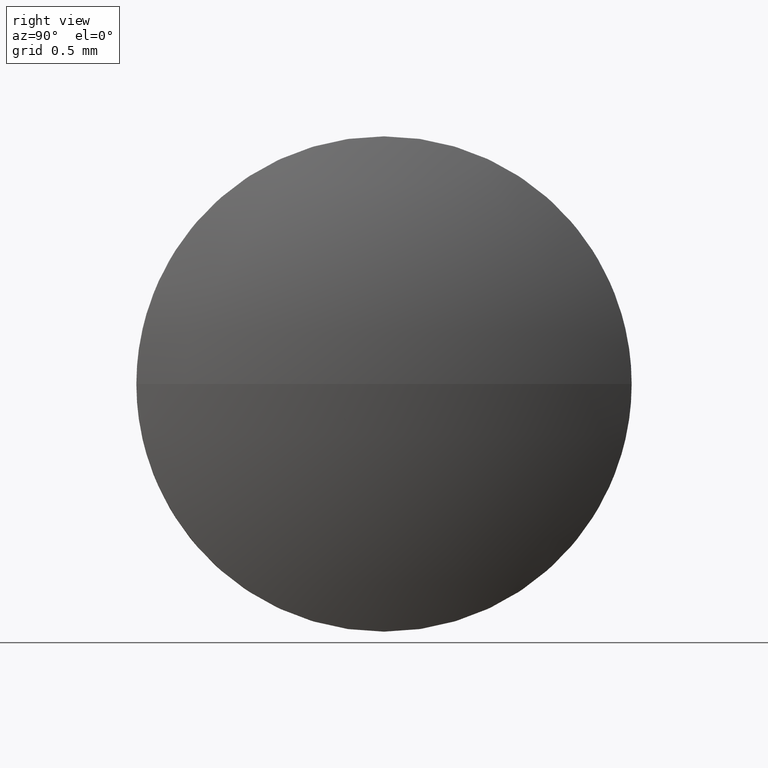
[diagram: clean part render]
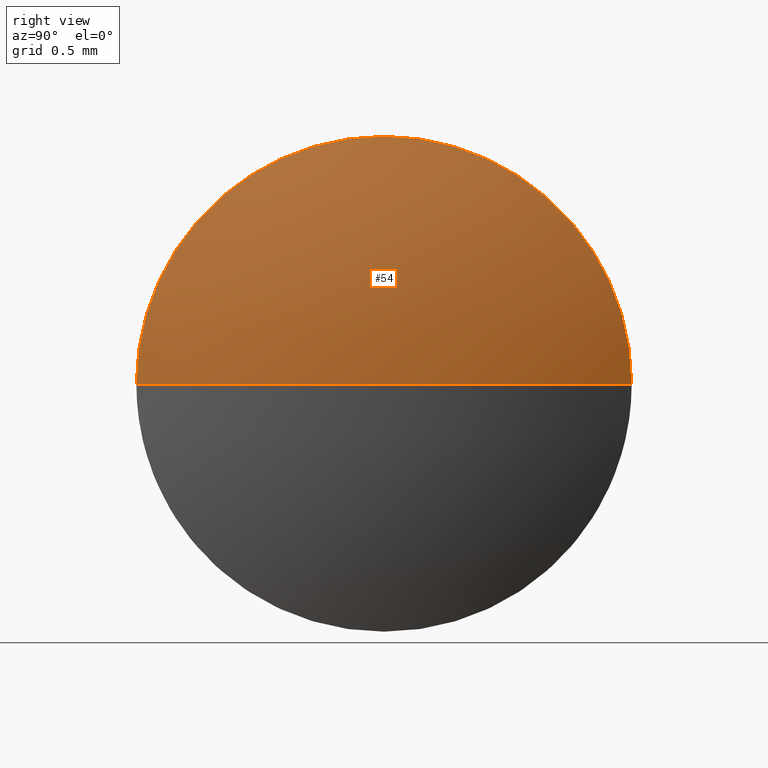
[diagram: same view with one face highlighted and labeled with its STEP entity id]
A machine part, right view. The second image highlights one B-rep face of the part: STEP entity #54.
In plain terms, the highlighted spherical surface has radius 5.2 mm.
Its self-contained STEP definition (entity closure, byte-faithful):
#2 = ORIENTED_EDGE ( 'NONE', *, *, #26, .T. ) ;
#4 = AXIS2_PLACEMENT_3D ( 'NONE', #65, #98, #161 ) ;
#7 = CIRCLE ( 'NONE', #4, 5.199999999999898900 ) ;
#12 = DIRECTION ( 'NONE',  ( -1.000000000000000000, -0.0000000000000000000, -0.0000000000000000000 ) ) ;
#16 = EDGE_LOOP ( 'NONE', ( #159, #2, #107, #23 ) ) ;
#19 = SPHERICAL_SURFACE ( 'NONE', #171, 5.199999999999887400 ) ;
#21 = CARTESIAN_POINT ( 'NONE',  ( 671.7241212514443300, 143.5310956935279000, -2.449293598294682300E-016 ) ) ;
#23 = ORIENTED_EDGE ( 'NONE', *, *, #147, .F. ) ;
#24 = DIRECTION ( 'NONE',  ( -1.000000000000000000, -0.0000000000000000000, -0.0000000000000000000 ) ) ;
#26 = EDGE_CURVE ( 'NONE', #135, #71, #66, .T. ) ;
#35 = CARTESIAN_POINT ( 'NONE',  ( 671.7241212514443300, 145.5310956935278200, 2.000000000000001800 ) ) ;
#40 = CIRCLE ( 'NONE', #155, 2.000000000000001800 ) ;
#42 = DIRECTION ( 'NONE',  ( -0.0000000000000000000, 0.0000000000000000000, 1.000000000000000000 ) ) ;
#44 = AXIS2_PLACEMENT_3D ( 'NONE', #110, #24, #160 ) ;
#54 = ADVANCED_FACE ( 'NONE', ( #127 ), #19, .T. ) ;
#60 = DIRECTION ( 'NONE',  ( 1.000000000000000000, 0.0000000000000000000, 0.0000000000000000000 ) ) ;
#65 = CARTESIAN_POINT ( 'NONE',  ( 666.9241212514443800, 145.5310956935278700, 0.0000000000000000000 ) ) ;
#66 = CIRCLE ( 'NONE', #139, 5.199999999999871400 ) ;
#71 = VERTEX_POINT ( 'NONE', #128 ) ;
#78 = DIRECTION ( 'NONE',  ( 0.0000000000000000000, 1.000000000000000000, 0.0000000000000000000 ) ) ;
#93 = CARTESIAN_POINT ( 'NONE',  ( 671.7241212514443300, 145.5310956935278200, 0.0000000000000000000 ) ) ;
#95 = DIRECTION ( 'NONE',  ( 0.0000000000000000000, 0.0000000000000000000, 1.000000000000000000 ) ) ;
#98 = DIRECTION ( 'NONE',  ( 0.0000000000000000000, 1.224646799147353200E-016, -1.000000000000000000 ) ) ;
#101 = EDGE_CURVE ( 'NONE', #135, #178, #7, .T. ) ;
#107 = ORIENTED_EDGE ( 'NONE', *, *, #109, .F. ) ;
#109 = EDGE_CURVE ( 'NONE', #156, #71, #186, .T. ) ;
#110 = CARTESIAN_POINT ( 'NONE',  ( 671.7241212514443300, 145.5310956935278200, 0.0000000000000000000 ) ) ;
#121 = CARTESIAN_POINT ( 'NONE',  ( 672.1241212514443100, 145.5310956935278700, 0.0000000000000000000 ) ) ;
#127 = FACE_OUTER_BOUND ( 'NONE', #16, .T. ) ;
#128 = CARTESIAN_POINT ( 'NONE',  ( 671.7241212514443300, 147.5310956935277900, 0.0000000000000000000 ) ) ;
#131 = CARTESIAN_POINT ( 'NONE',  ( 666.9241212514443800, 145.5310956935278700, 0.0000000000000000000 ) ) ;
#132 = CARTESIAN_POINT ( 'NONE',  ( 666.9241212514443800, 145.5310956935278700, 0.0000000000000000000 ) ) ;
#135 = VERTEX_POINT ( 'NONE', #121 ) ;
#139 = AXIS2_PLACEMENT_3D ( 'NONE', #131, #42, #60 ) ;
#147 = EDGE_CURVE ( 'NONE', #178, #156, #40, .T. ) ;
#155 = AXIS2_PLACEMENT_3D ( 'NONE', #93, #12, #95 ) ;
#156 = VERTEX_POINT ( 'NONE', #35 ) ;
#159 = ORIENTED_EDGE ( 'NONE', *, *, #101, .F. ) ;
#160 = DIRECTION ( 'NONE',  ( 0.0000000000000000000, 0.0000000000000000000, 1.000000000000000000 ) ) ;
#161 = DIRECTION ( 'NONE',  ( 0.0000000000000000000, 1.000000000000000000, 1.224646799147350500E-016 ) ) ;
#171 = AXIS2_PLACEMENT_3D ( 'NONE', #132, #177, #78 ) ;
#177 = DIRECTION ( 'NONE',  ( -0.0000000000000000000, 0.0000000000000000000, -1.000000000000000000 ) ) ;
#178 = VERTEX_POINT ( 'NONE', #21 ) ;
#186 = CIRCLE ( 'NONE', #44, 2.000000000000001800 ) ;